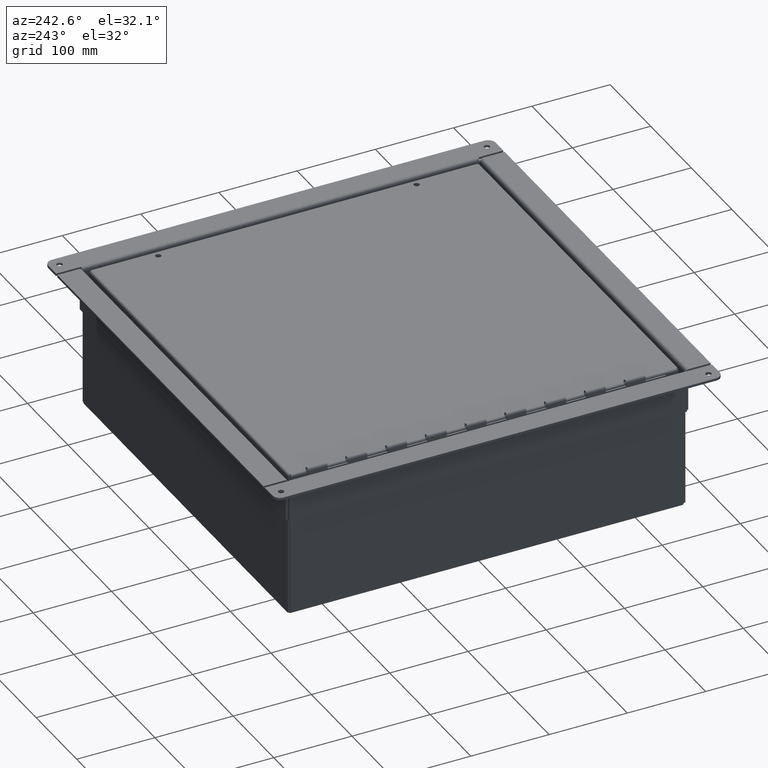
[diagram: clean part render]
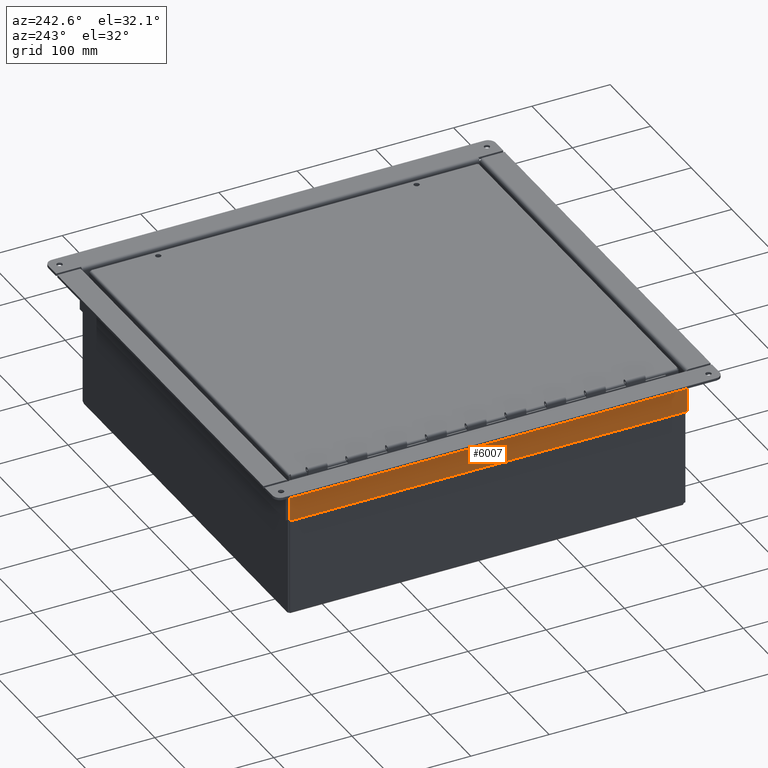
[diagram: same view with one face highlighted and labeled with its STEP entity id]
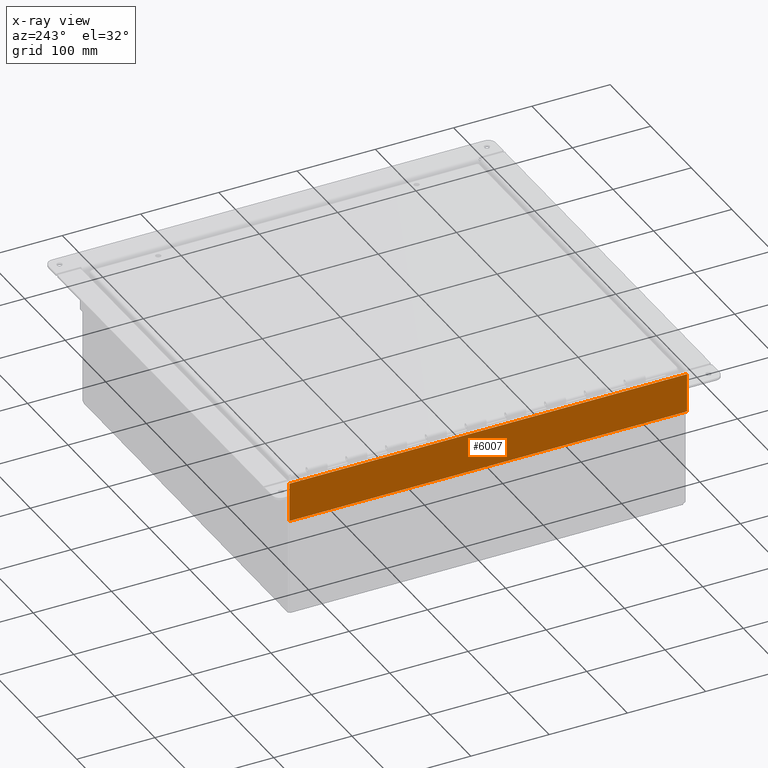
[diagram: x-ray of the same camera — body ghosted, the highlighted face saturated]
A machine part, auxiliary view. The second image highlights one B-rep face of the part: STEP entity #6007.
The next image is the same camera in x-ray: the body ghosted, the highlighted face saturated — about 0% of this face is hidden behind the body in this view.
In plain terms, the highlighted planar face has unit normal (1, 0, -0).
Its self-contained STEP definition (entity closure, byte-faithful):
#573=PLANE($,#6475);
#901=FACE_OUTER_BOUND($,#1297,.T.);
#1297=EDGE_LOOP($,(#5043,#5044,#5045,#5046));
#1861=LINE($,#10781,#2409);
#1864=LINE($,#10787,#2412);
#1865=LINE($,#10789,#2413);
#1866=LINE($,#10790,#2414);
#2409=VECTOR($,#7869,1.96875);
#2412=VECTOR($,#7874,20.);
#2413=VECTOR($,#7875,1.96875);
#2414=VECTOR($,#7876,20.);
#2877=VERTEX_POINT($,#10778);
#2878=VERTEX_POINT($,#10780);
#2880=VERTEX_POINT($,#10786);
#2881=VERTEX_POINT($,#10788);
#3611=EDGE_CURVE($,#2878,#2877,#1861,.T.);
#3614=EDGE_CURVE($,#2877,#2880,#1864,.T.);
#3615=EDGE_CURVE($,#2881,#2880,#1865,.T.);
#3616=EDGE_CURVE($,#2881,#2878,#1866,.T.);
#5043=ORIENTED_EDGE($,*,*,#3614,.T.);
#5044=ORIENTED_EDGE($,*,*,#3615,.F.);
#5045=ORIENTED_EDGE($,*,*,#3616,.T.);
#5046=ORIENTED_EDGE($,*,*,#3611,.T.);
#6007=ADVANCED_FACE($,(#901),#573,.F.);
#6475=AXIS2_PLACEMENT_3D($,#10785,#7872,#7873);
#7869=DIRECTION($,(-3.21373302499826E-032,1.82608861443158E-016,1.));
#7872=DIRECTION('center_axis',(-1.,-1.82751254151939E-016,6.07777611332978E-017));
#7873=DIRECTION('ref_axis',(0.,-1.82608861443158E-016,1.));
#7874=DIRECTION($,(1.82751254151939E-016,-1.,-8.71903875155072E-036));
#7875=DIRECTION($,(-3.21373302499826E-032,1.82608861443158E-016,1.));
#7876=DIRECTION($,(-1.82608861443158E-016,1.,-1.84551508905319E-016));
#10778=CARTESIAN_POINT('',(-0.562500000000004,10.,-0.03125));
#10780=CARTESIAN_POINT('',(-0.562500000000005,10.,-2.));
#10781=CARTESIAN_POINT($,(-0.562500000000004,10.,0.146642684009522));
#10785=CARTESIAN_POINT('Origin',(-0.562500000000003,7.94104216765316E-016,
-0.971151828997617));
#10786=CARTESIAN_POINT('',(-0.562500000000001,-10.,-0.03125));
#10787=CARTESIAN_POINT($,(-0.562500000000003,3.94200651530101E-016,-0.0312499999999999));
#10788=CARTESIAN_POINT('',(-0.562500000000001,-10.,-2.));
#10789=CARTESIAN_POINT($,(-0.562500000000001,-10.,0.146642684009526));
#10790=CARTESIAN_POINT($,(-0.562500000000001,-10.,-2.));